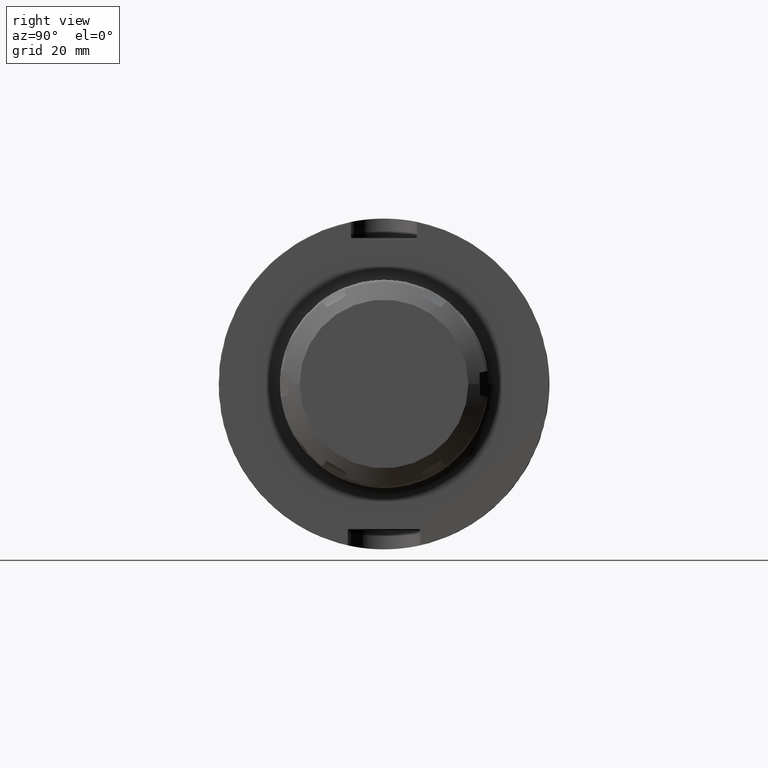
[diagram: clean part render]
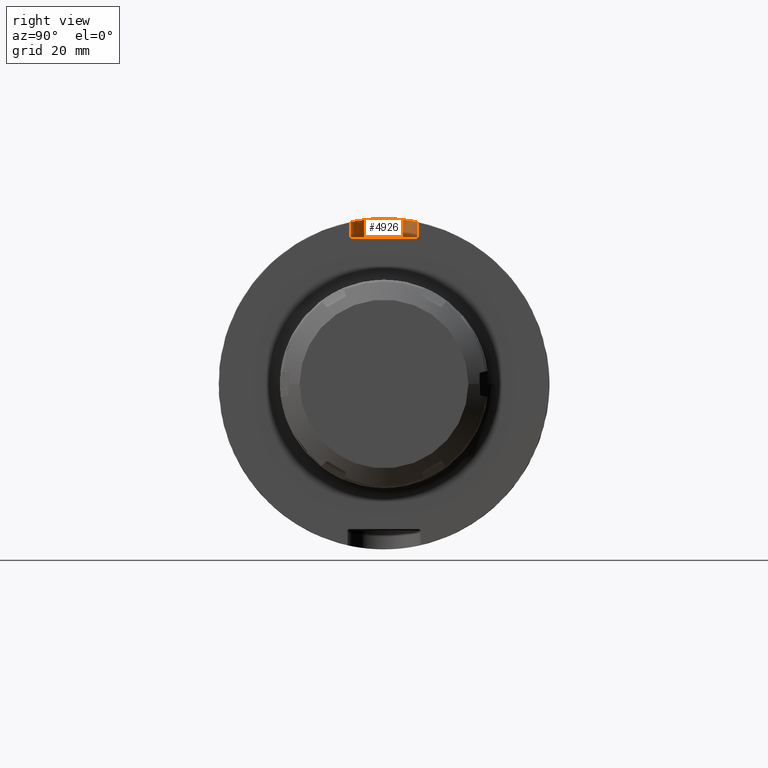
[diagram: same view with one face highlighted and labeled with its STEP entity id]
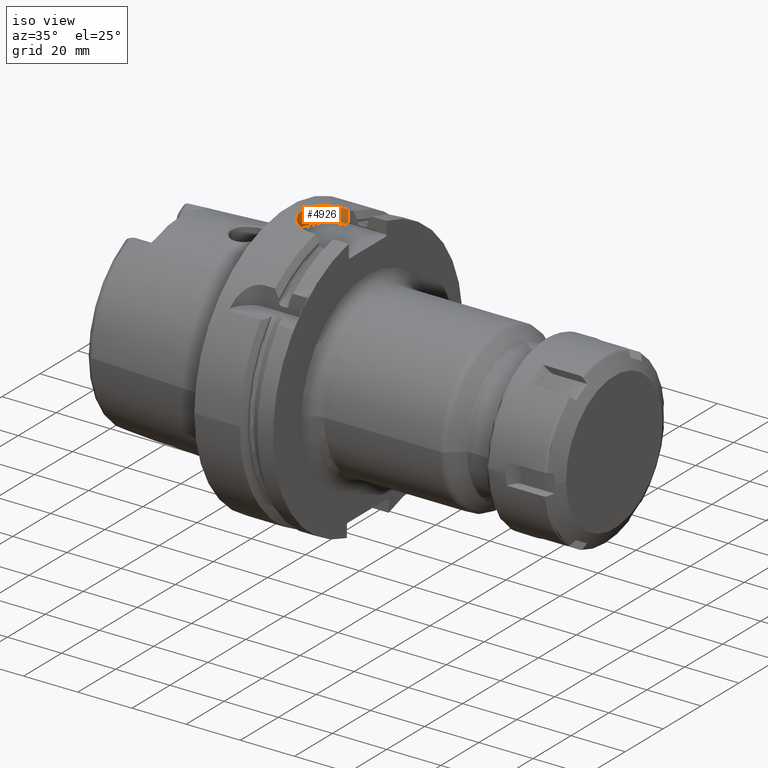
[diagram: same view with one face highlighted and labeled with its STEP entity id]
A machine part, right view. The second image highlights one B-rep face of the part: STEP entity #4926.
A second angle (iso view) of the same face is appended — the face is thin or edge-on in the first view.
In plain terms, the highlighted cylindrical surface (edge-blend (fillet) strip) has radius 10.021 mm, axis along (0, 0, 1).
Its self-contained STEP definition (entity closure, byte-faithful):
#993=CARTESIAN_POINT('',(1.4971E1,-1.0021E1,4.898550355973E1));
#994=CARTESIAN_POINT('',(1.458454453946E1,-1.0021E1,4.898550355973E1));
#995=CARTESIAN_POINT('',(1.381655133072E1,-9.976740185647E0,4.899459073095E1));
#996=CARTESIAN_POINT('',(1.266942596701E1,-9.776152988545E0,4.903519375310E1));
#997=CARTESIAN_POINT('',(1.155683110644E1,-9.445459055562E0,4.910027514894E1));
#998=CARTESIAN_POINT('',(1.047977558748E1,-8.983631638944E0,4.918727075021E1));
#999=CARTESIAN_POINT('',(9.466177285198E0,-8.400981043598E0,4.929062156435E1));
#1000=CARTESIAN_POINT('',(8.519407725876E0,-7.697982287947E0,4.940582562418E1));
#1001=CARTESIAN_POINT('',(7.665334039954E0,-6.892599152650E0,4.952515202057E1));
#1002=CARTESIAN_POINT('',(6.908111859947E0,-5.989324484858E0,4.964302685425E1));
#1003=CARTESIAN_POINT('',(6.264744061136E0,-5.007778643158E0,4.975207678943E1));
#1004=CARTESIAN_POINT('',(5.741473345924E0,-3.961363340466E0,4.984672548755E1));
#1005=CARTESIAN_POINT('',(5.344130846029E0,-2.862527957981E0,4.992215669823E1));
#1006=CARTESIAN_POINT('',(5.078393305869E0,-1.733901212709E0,4.997430711070E1));
#1007=CARTESIAN_POINT('',(4.944341616599E0,-5.777580650163E-1,
5.000112931481E1));
#1008=CARTESIAN_POINT('',(4.944315928022E0,5.773279639049E-1,5.000113448069E1));
#1009=CARTESIAN_POINT('',(5.078322579218E0,1.733492413226E0,4.997432118635E1));
#1010=CARTESIAN_POINT('',(5.344001846227E0,2.862095223700E0,4.992218166882E1));
#1011=CARTESIAN_POINT('',(5.741312237245E0,3.960989230123E0,4.984675542369E1));
#1012=CARTESIAN_POINT('',(6.264519812964E0,5.007383356228E0,4.975211639672E1));
#1013=CARTESIAN_POINT('',(6.907846455963E0,5.988978972926E0,4.964306957437E1));
#1014=CARTESIAN_POINT('',(7.665164584495E0,6.892417582972E0,4.952517735608E1));
#1015=CARTESIAN_POINT('',(8.519073552972E0,7.697699870757E0,4.940586958380E1));
#1016=CARTESIAN_POINT('',(9.465968786606E0,8.400855458811E0,4.929064376063E1));
#1017=CARTESIAN_POINT('',(1.047967346828E1,8.983583701143E0,4.918727958223E1));
#1018=CARTESIAN_POINT('',(1.155675667545E1,9.445430767578E0,4.910028060462E1));
#1019=CARTESIAN_POINT('',(1.266928778671E1,9.776119487819E0,4.903520044243E1));
#1020=CARTESIAN_POINT('',(1.381645372071E1,9.976731891226E0,4.899459244927E1));
#1021=CARTESIAN_POINT('',(1.458450472271E1,1.0021E1,4.898550355973E1));
#1022=CARTESIAN_POINT('',(1.4971E1,1.0021E1,4.898550355973E1));
#1740=DIRECTION('',(-3.396764839961E-10,-2.698853458620E-8,1.E0));
#1741=VECTOR('',#1740,4.685503433286E0);
#1742=CARTESIAN_POINT('',(1.497100000159E1,-1.002099987355E1,4.430000012644E1));
#1743=LINE('',#1742,#1741);
#1744=CARTESIAN_POINT('',(1.4971E1,0.E0,4.430000064341E1));
#1745=DIRECTION('',(0.E0,0.E0,1.E0));
#1746=DIRECTION('',(0.E0,1.E0,0.E0));
#1747=AXIS2_PLACEMENT_3D('',#1744,#1745,#1746);
#1749=DIRECTION('',(-3.562325498022E-10,2.698877646323E-8,1.E0));
#1750=VECTOR('',#1749,4.685503433287E0);
#1751=CARTESIAN_POINT('',(1.497100000167E1,1.002099987354E1,4.430000012644E1));
#1752=LINE('',#1751,#1750);
#3028=VERTEX_POINT('',#993);
#3029=VERTEX_POINT('',#1022);
#3056=CARTESIAN_POINT('',(1.497100000159E1,-1.002099987355E1,4.430000012644E1));
#3057=VERTEX_POINT('',#3056);
#3060=CARTESIAN_POINT('',(1.4971E1,1.0021E1,4.430000064341E1));
#3061=VERTEX_POINT('',#3060);
#4914=CARTESIAN_POINT('',(1.4971E1,0.E0,4.39E1));
#4915=DIRECTION('',(0.E0,0.E0,1.E0));
#4916=DIRECTION('',(1.E0,0.E0,0.E0));
#4917=AXIS2_PLACEMENT_3D('',#4914,#4915,#4916);
#4918=CYLINDRICAL_SURFACE('',#4917,1.0021E1);
#4920=ORIENTED_EDGE('',*,*,#4919,.T.);
#4921=ORIENTED_EDGE('',*,*,#4909,.T.);
#4922=ORIENTED_EDGE('',*,*,#4234,.T.);
#4923=ORIENTED_EDGE('',*,*,#4836,.F.);
#4924=EDGE_LOOP('',(#4920,#4921,#4922,#4923));
#4925=FACE_OUTER_BOUND('',#4924,.F.);
#4926=ADVANCED_FACE('',(#4925),#4918,.F.);
#1023=B_SPLINE_CURVE_WITH_KNOTS('',3,(#993,#994,#995,#996,#997,#998,#999,#1000,
#1001,#1002,#1003,#1004,#1005,#1006,#1007,#1008,#1009,#1010,#1011,#1012,#1013,
#1014,#1015,#1016,#1017,#1018,#1019,#1020,#1021,#1022),.UNSPECIFIED.,.F.,.F.,(4,
1,1,1,1,1,1,1,1,1,1,1,1,1,1,1,1,1,1,1,1,1,1,1,1,1,1,4),(0.E0,3.703703703704E-2,
7.407407407407E-2,1.111111111111E-1,1.481481481481E-1,1.851851851852E-1,
2.222222222222E-1,2.592592592593E-1,2.962962962963E-1,3.333333333333E-1,
3.703703703704E-1,4.074074074074E-1,4.444444444444E-1,4.814814814815E-1,
5.185185185185E-1,5.555555555556E-1,5.925925925926E-1,6.296296296296E-1,
6.666666666667E-1,7.037037037037E-1,7.407407407407E-1,7.777777777778E-1,
8.148148148148E-1,8.518518518519E-1,8.888888888889E-1,9.259259259259E-1,
9.629629629630E-1,1.E0),.UNSPECIFIED.);
#1748=CIRCLE('',#1747,1.0021E1);
#4234=EDGE_CURVE('',#3028,#3029,#1023,.T.);
#4836=EDGE_CURVE('',#3061,#3029,#1752,.T.);
#4909=EDGE_CURVE('',#3057,#3028,#1743,.T.);
#4919=EDGE_CURVE('',#3061,#3057,#1748,.T.);